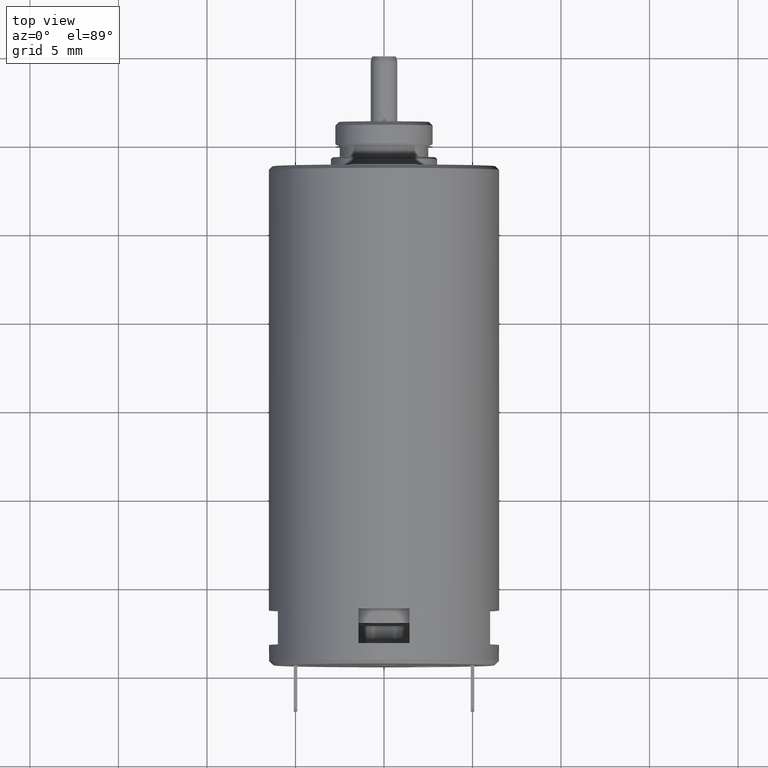
[diagram: clean part render]
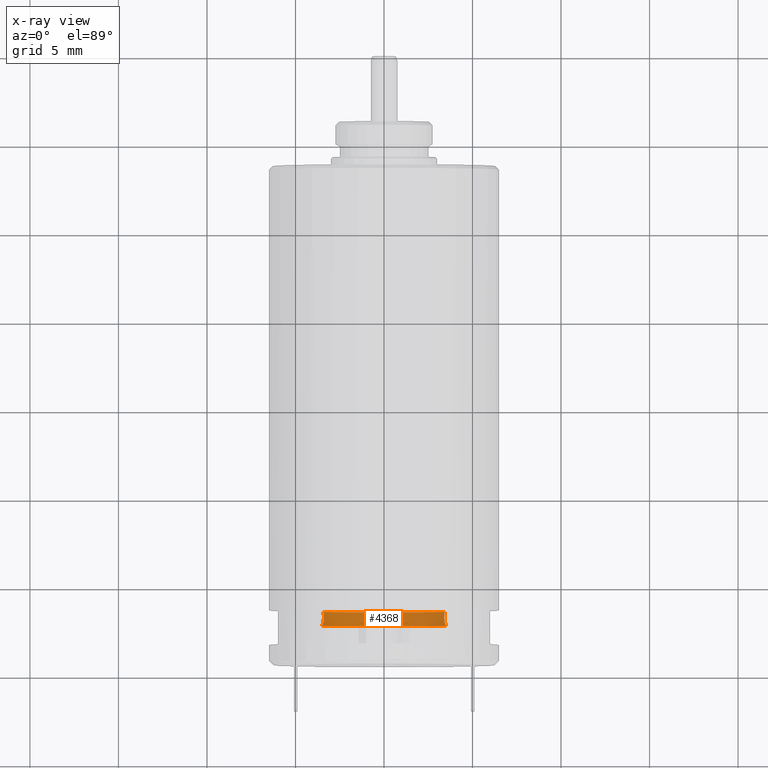
[diagram: x-ray — body ghosted, one internal face saturated and labeled with its STEP entity id]
A machine part, top view, then the same camera in x-ray: the body is ghosted and one INTERNAL B-rep face — a face not visible from any outside direction — is saturated and labeled: STEP entity #4368.
In plain terms, the highlighted conical surface has half-angle 30 deg.
Its self-contained STEP definition (entity closure, byte-faithful):
#946=CARTESIAN_POINT('',(-3.526023077008E0,-3.21E1,-3.873636552225E0));
#947=CARTESIAN_POINT('',(-3.502019496119E0,-3.207474425330E1,
-3.915203787942E0));
#948=CARTESIAN_POINT('',(-3.460928670096E0,-3.201093230772E1,
-4.000809997796E0));
#949=CARTESIAN_POINT('',(-3.419321113158E0,-3.187869838362E1,
-4.135835996602E0));
#950=CARTESIAN_POINT('',(-3.398190696184E0,-3.171534185853E1,
-4.274240952675E0));
#951=CARTESIAN_POINT('',(-3.397487903848E0,-3.152351095202E1,
-4.415278756029E0));
#952=CARTESIAN_POINT('',(-3.411330481187E0,-3.137738467839E1,
-4.510642043664E0));
#953=CARTESIAN_POINT('',(-3.422137559800E0,-3.13E1,-4.558396047055E0));
#955=CARTESIAN_POINT('',(0.E0,-3.21E1,0.E0));
#956=DIRECTION('',(0.E0,1.E0,0.E0));
#957=DIRECTION('',(6.731467056828E-1,0.E0,-7.395089672400E-1));
#958=AXIS2_PLACEMENT_3D('',#955,#956,#957);
#960=CARTESIAN_POINT('',(3.422137559800E0,-3.13E1,-4.558396047055E0));
#961=CARTESIAN_POINT('',(3.411361257194E0,-3.137716430510E1,-4.510778035785E0));
#962=CARTESIAN_POINT('',(3.397532496786E0,-3.152293186342E1,-4.415664785127E0));
#963=CARTESIAN_POINT('',(3.398148335573E0,-3.171443167351E1,-4.274943945099E0));
#964=CARTESIAN_POINT('',(3.419132063992E0,-3.187778856417E1,-4.136672497107E0));
#965=CARTESIAN_POINT('',(3.460645699692E0,-3.201036866855E1,-4.001487279442E0));
#966=CARTESIAN_POINT('',(3.501860387588E0,-3.207457684475E1,-3.915479317741E0));
#967=CARTESIAN_POINT('',(3.526023077008E0,-3.21E1,-3.873636552225E0));
#969=CARTESIAN_POINT('',(0.E0,-3.13E1,0.E0));
#970=DIRECTION('',(0.E0,1.E0,0.E0));
#971=DIRECTION('',(6.003750104913E-1,0.E0,-7.997186047464E-1));
#972=AXIS2_PLACEMENT_3D('',#969,#970,#971);
#2561=VERTEX_POINT('',#960);
#2562=VERTEX_POINT('',#967);
#2571=VERTEX_POINT('',#946);
#2572=VERTEX_POINT('',#953);
#4356=CARTESIAN_POINT('',(0.E0,-3.17E1,0.E0));
#4357=DIRECTION('',(0.E0,1.E0,0.E0));
#4358=DIRECTION('',(1.E0,0.E0,0.E0));
#4359=AXIS2_PLACEMENT_3D('',#4356,#4357,#4358);
#4360=CONICAL_SURFACE('',#4359,5.469059892324E0,3.E1);
#4361=ORIENTED_EDGE('',*,*,#4310,.F.);
#4362=ORIENTED_EDGE('',*,*,#4272,.F.);
#4364=ORIENTED_EDGE('',*,*,#4363,.F.);
#4365=ORIENTED_EDGE('',*,*,#4349,.T.);
#4366=EDGE_LOOP('',(#4361,#4362,#4364,#4365));
#4367=FACE_OUTER_BOUND('',#4366,.F.);
#4368=ADVANCED_FACE('',(#4367),#4360,.T.);
#954=B_SPLINE_CURVE_WITH_KNOTS('',3,(#946,#947,#948,#949,#950,#951,#952,#953),
.UNSPECIFIED.,.F.,.F.,(4,1,1,1,1,4),(0.E0,2.E-1,4.E-1,6.E-1,8.E-1,1.E0),
.UNSPECIFIED.);
#959=CIRCLE('',#958,5.238119784648E0);
#968=B_SPLINE_CURVE_WITH_KNOTS('',3,(#960,#961,#962,#963,#964,#965,#966,#967),
.UNSPECIFIED.,.F.,.F.,(4,1,1,1,1,4),(0.E0,2.E-1,4.E-1,6.E-1,8.E-1,1.E0),
.UNSPECIFIED.);
#973=CIRCLE('',#972,5.7E0);
#4272=EDGE_CURVE('',#2562,#2571,#959,.T.);
#4310=EDGE_CURVE('',#2571,#2572,#954,.T.);
#4349=EDGE_CURVE('',#2561,#2572,#973,.T.);
#4363=EDGE_CURVE('',#2561,#2562,#968,.T.);